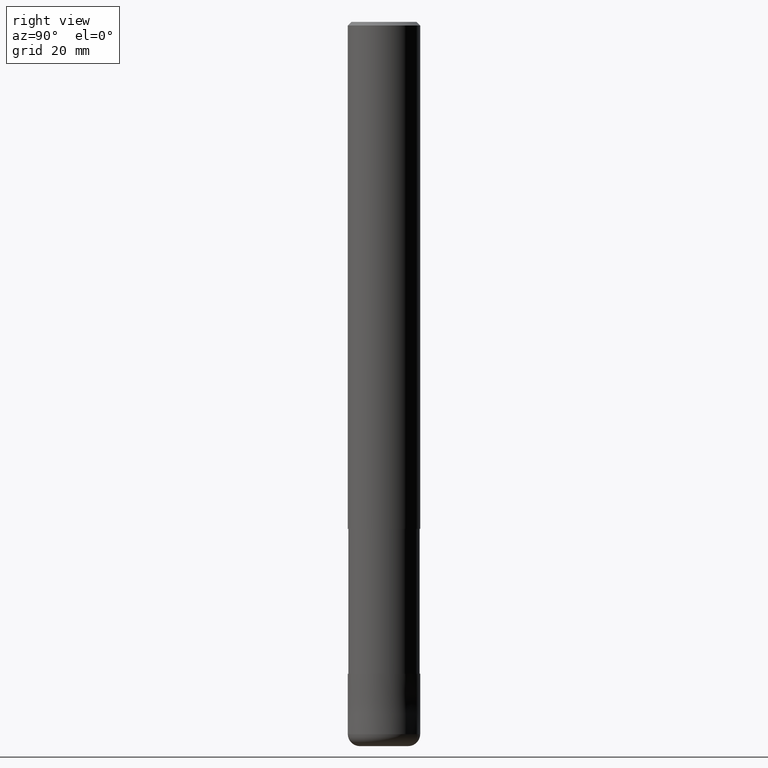
[diagram: clean part render]
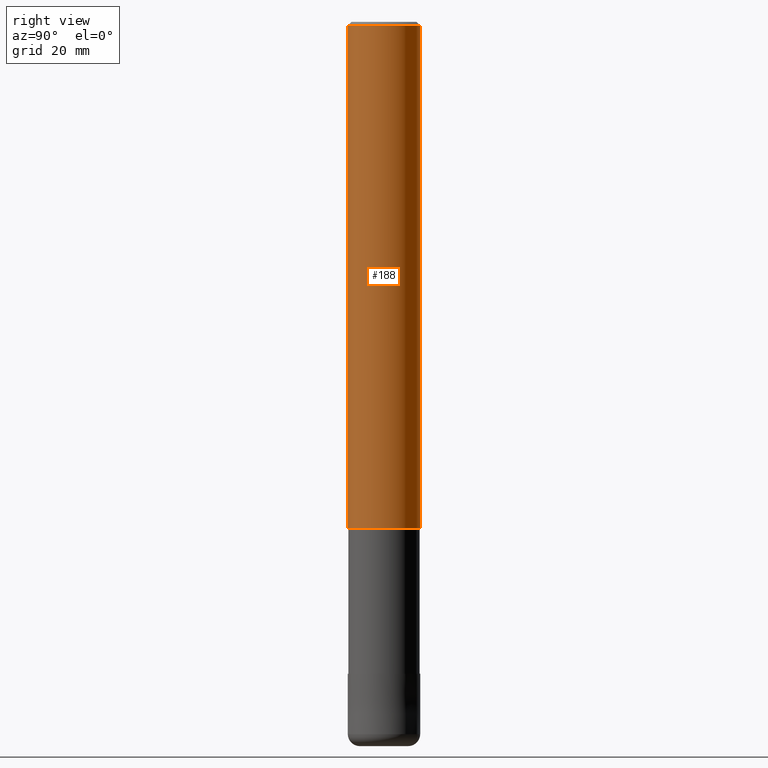
[diagram: same view with one face highlighted and labeled with its STEP entity id]
A machine part, right view. The second image highlights one B-rep face of the part: STEP entity #188.
In plain terms, the highlighted cylindrical surface (edge-blend (fillet) strip) has radius 6 mm, axis along (-0, -0, 1).
Its self-contained STEP definition (entity closure, byte-faithful):
#94=EDGE_CURVE('',#174,#122,#233,.T.);
#96=EDGE_CURVE('',#122,#144,#235,.T.);
#122=VERTEX_POINT('',#266);
#130=EDGE_CURVE('',#174,#184,#274,.T.);
#136=EDGE_CURVE('',#144,#184,#280,.T.);
#144=VERTEX_POINT('',#290);
#174=VERTEX_POINT('',#322);
#184=VERTEX_POINT('',#333);
#188=ADVANCED_FACE('',(#337),#338,.T.);
#233=LINE('',#379,#380);
#235=CIRCLE('',#383,6.0);
#266=CARTESIAN_POINT('',(0.0,6.0,-84.0));
#274=CIRCLE('',#427,6.0);
#280=LINE('',#437,#438);
#290=CARTESIAN_POINT('',(7.34763812293426E-016,-6.0,-84.0));
#322=CARTESIAN_POINT('',(0.0,6.0,-0.599999999999994));
#333=CARTESIAN_POINT('',(7.34763812293426E-016,-6.0,-0.599999999999994));
#337=FACE_OUTER_BOUND('',#511,.T.);
#338=CYLINDRICAL_SURFACE('',#512,6.0);
#379=CARTESIAN_POINT('',(-7.34763812293426E-016,6.0,-42.3));
#380=VECTOR('',#548,1.0);
#383=AXIS2_PLACEMENT_3D('',#549,#550,#551);
#427=AXIS2_PLACEMENT_3D('',#612,#613,#614);
#437=CARTESIAN_POINT('',(7.34763812293426E-016,-6.0,-42.3));
#438=VECTOR('',#619,1.0);
#511=EDGE_LOOP('',(#683,#684,#685,#686));
#512=AXIS2_PLACEMENT_3D('',#687,#688,#689);
#548=DIRECTION('',(0.0,0.0,-1.0));
#549=CARTESIAN_POINT('',(0.0,0.0,-84.0));
#550=DIRECTION('',(0.0,0.0,-1.0));
#551=DIRECTION('',(0.0,1.0,0.0));
#612=CARTESIAN_POINT('',(0.0,0.0,-0.599999999999994));
#613=DIRECTION('',(0.0,0.0,-1.0));
#614=DIRECTION('',(0.0,1.0,0.0));
#619=DIRECTION('',(-0.0,-0.0,1.0));
#683=ORIENTED_EDGE('',*,*,#94,.F.);
#684=ORIENTED_EDGE('',*,*,#130,.T.);
#685=ORIENTED_EDGE('',*,*,#136,.F.);
#686=ORIENTED_EDGE('',*,*,#96,.F.);
#687=CARTESIAN_POINT('',(0.0,0.0,-42.3));
#688=DIRECTION('',(-0.0,-0.0,1.0));
#689=DIRECTION('',(0.0,1.0,0.0));